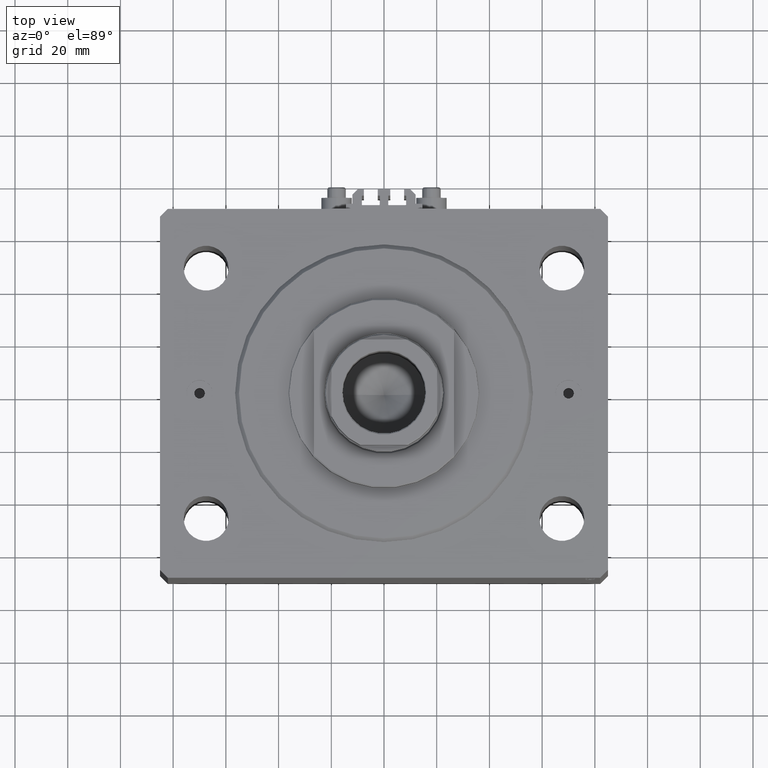
[diagram: clean part render]
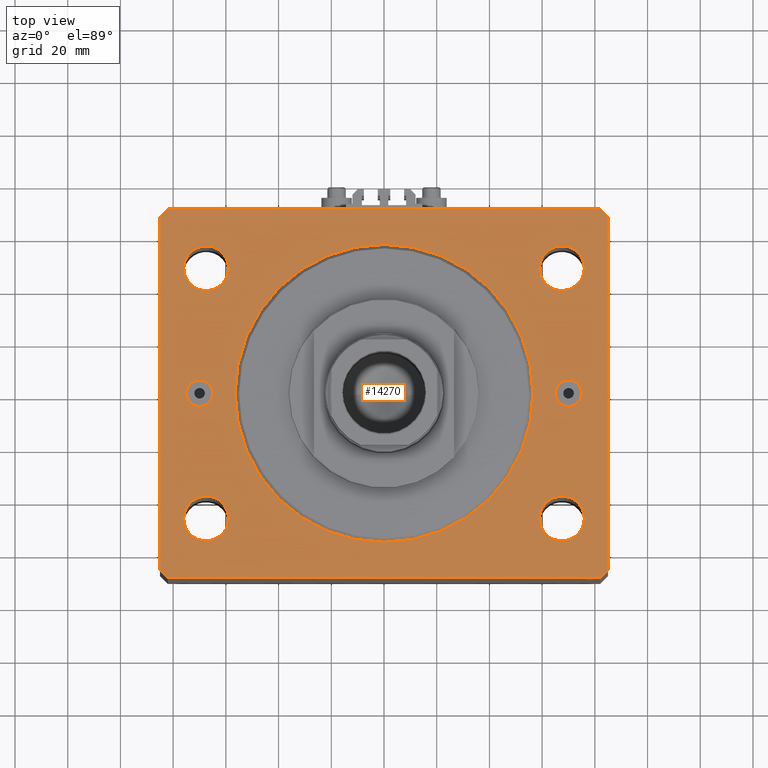
[diagram: same view with one face highlighted and labeled with its STEP entity id]
A machine part, top view. The second image highlights one B-rep face of the part: STEP entity #14270.
In plain terms, the highlighted planar face has unit normal (0, 0, 1).
Its self-contained STEP definition (entity closure, byte-faithful):
#52 = LINE ( 'NONE', #14856, #43388 ) ;
#108 = AXIS2_PLACEMENT_3D ( 'NONE', #15027, #25547, #40118 ) ;
#289 = CARTESIAN_POINT ( 'NONE',  ( 82.00000000000056843, 70.00000000000000000, 0.000000000000000000 ) ) ;
#474 = DIRECTION ( 'NONE',  ( 1.000000000000000000, 0.000000000000000000, 0.000000000000000000 ) ) ;
#652 = CARTESIAN_POINT ( 'NONE',  ( -76.00000000000000000, 47.50000000000000000, 0.000000000000000000 ) ) ;
#887 = CARTESIAN_POINT ( 'NONE',  ( 65.00000000000000000, 6.123233995736770227E-16, 0.000000000000000000 ) ) ;
#957 = DIRECTION ( 'NONE',  ( 1.000000000000000000, 0.000000000000000000, 0.000000000000000000 ) ) ;
#968 = EDGE_CURVE ( 'NONE', #1524, #42477, #32631, .T. ) ;
#1405 = DIRECTION ( 'NONE',  ( 0.000000000000000000, 0.000000000000000000, 1.000000000000000000 ) ) ;
#1524 = VERTEX_POINT ( 'NONE', #20827 ) ;
#1705 = CIRCLE ( 'NONE', #13165, 5.000000000000004441 ) ;
#1956 = CARTESIAN_POINT ( 'NONE',  ( -67.49999999999998579, -47.50000000000001421, 0.000000000000000000 ) ) ;
#2102 = ORIENTED_EDGE ( 'NONE', *, *, #40814, .T. ) ;
#2141 = ORIENTED_EDGE ( 'NONE', *, *, #24692, .T. ) ;
#2243 = VERTEX_POINT ( 'NONE', #289 ) ;
#2272 = VECTOR ( 'NONE', #24500, 1000.000000000000000 ) ;
#2326 = EDGE_CURVE ( 'NONE', #43741, #16659, #31159, .T. ) ;
#2604 = CARTESIAN_POINT ( 'NONE',  ( -85.00000000000001421, 67.00000000000001421, 0.000000000000000000 ) ) ;
#2660 = CARTESIAN_POINT ( 'NONE',  ( -59.00000000000001421, 47.50000000000000000, 0.000000000000000000 ) ) ;
#2767 = DIRECTION ( 'NONE',  ( 1.000000000000000000, 0.000000000000000000, 0.000000000000000000 ) ) ;
#3229 = ORIENTED_EDGE ( 'NONE', *, *, #16658, .F. ) ;
#3385 = VERTEX_POINT ( 'NONE', #15558 ) ;
#3391 = EDGE_CURVE ( 'NONE', #2243, #43118, #52, .T. ) ;
#3524 = CARTESIAN_POINT ( 'NONE',  ( 75.99999999999998579, -47.50000000000001421, 0.000000000000000000 ) ) ;
#3620 = EDGE_LOOP ( 'NONE', ( #29940, #2141, #8215, #15736, #19593, #2102, #12504, #19585 ) ) ;
#3699 = ORIENTED_EDGE ( 'NONE', *, *, #31629, .F. ) ;
#3866 = CARTESIAN_POINT ( 'NONE',  ( 85.00000000000052580, 66.99999999999995737, 0.000000000000000000 ) ) ;
#4001 = AXIS2_PLACEMENT_3D ( 'NONE', #19514, #19037, #26669 ) ;
#4335 = DIRECTION ( 'NONE',  ( 1.000000000000000000, 0.000000000000000000, 0.000000000000000000 ) ) ;
#4572 = CARTESIAN_POINT ( 'NONE',  ( 70.00000000000000000, 0.000000000000000000, 0.000000000000000000 ) ) ;
#4705 = EDGE_CURVE ( 'NONE', #35579, #15583, #30427, .T. ) ;
#4861 = DIRECTION ( 'NONE',  ( 0.000000000000000000, 0.000000000000000000, 1.000000000000000000 ) ) ;
#5519 = DIRECTION ( 'NONE',  ( 0.000000000000000000, -0.000000000000000000, -1.000000000000000000 ) ) ;
#5530 = CIRCLE ( 'NONE', #4001, 8.499999999999992895 ) ;
#5637 = VERTEX_POINT ( 'NONE', #37970 ) ;
#6010 = CIRCLE ( 'NONE', #24291, 8.499999999999992895 ) ;
#6042 = CIRCLE ( 'NONE', #31975, 8.500000000000007105 ) ;
#6076 = VECTOR ( 'NONE', #43825, 1000.000000000000114 ) ;
#6149 = VECTOR ( 'NONE', #35061, 1000.000000000000114 ) ;
#6207 = CARTESIAN_POINT ( 'NONE',  ( -82.00000000000000000, 70.00000000000000000, 0.000000000000000000 ) ) ;
#6305 = DIRECTION ( 'NONE',  ( 3.728360903591945148E-15, 1.000000000000000000, 0.000000000000000000 ) ) ;
#6600 = CARTESIAN_POINT ( 'NONE',  ( -70.00000000000000000, 0.000000000000000000, 0.000000000000000000 ) ) ;
#6945 = FACE_BOUND ( 'NONE', #37685, .T. ) ;
#7240 = LINE ( 'NONE', #32536, #37905 ) ;
#7487 = EDGE_CURVE ( 'NONE', #45016, #18530, #9091, .T. ) ;
#8215 = ORIENTED_EDGE ( 'NONE', *, *, #10422, .T. ) ;
#8246 = CARTESIAN_POINT ( 'NONE',  ( -65.00000000000000000, 0.000000000000000000, 0.000000000000000000 ) ) ;
#8278 = LINE ( 'NONE', #11632, #24062 ) ;
#8437 = CARTESIAN_POINT ( 'NONE',  ( -75.99999999999998579, -47.50000000000001421, 0.000000000000000000 ) ) ;
#9091 = CIRCLE ( 'NONE', #15197, 56.50000000000000711 ) ;
#9870 = DIRECTION ( 'NONE',  ( 0.000000000000000000, 0.000000000000000000, 1.000000000000000000 ) ) ;
#9987 = EDGE_CURVE ( 'NONE', #28322, #14012, #35062, .T. ) ;
#10422 = EDGE_CURVE ( 'NONE', #40585, #21958, #21148, .T. ) ;
#10494 = EDGE_LOOP ( 'NONE', ( #28122, #21555 ) ) ;
#10580 = ORIENTED_EDGE ( 'NONE', *, *, #27218, .F. ) ;
#10974 = EDGE_LOOP ( 'NONE', ( #13270, #38500 ) ) ;
#11632 = CARTESIAN_POINT ( 'NONE',  ( -82.00000000000000000, 70.00000000000000000, 0.000000000000000000 ) ) ;
#12023 = AXIS2_PLACEMENT_3D ( 'NONE', #33332, #36221, #15187 ) ;
#12501 = DIRECTION ( 'NONE',  ( 1.000000000000000000, 0.000000000000000000, 0.000000000000000000 ) ) ;
#12504 = ORIENTED_EDGE ( 'NONE', *, *, #46563, .T. ) ;
#12731 = DIRECTION ( 'NONE',  ( 1.000000000000000000, 0.000000000000000000, 0.000000000000000000 ) ) ;
#12854 = AXIS2_PLACEMENT_3D ( 'NONE', #6600, #21150, #2767 ) ;
#12995 = CARTESIAN_POINT ( 'NONE',  ( -70.00000000000000000, 0.000000000000000000, 0.000000000000000000 ) ) ;
#13038 = VERTEX_POINT ( 'NONE', #38020 ) ;
#13165 = AXIS2_PLACEMENT_3D ( 'NONE', #12995, #30419, #34006 ) ;
#13270 = ORIENTED_EDGE ( 'NONE', *, *, #32238, .F. ) ;
#14012 = VERTEX_POINT ( 'NONE', #652 ) ;
#14270 = ADVANCED_FACE ( 'NONE', ( #16970, #35345, #20546, #31534, #18625, #39888, #6945, #22439 ), #40346, .T. ) ;
#14358 = CIRCLE ( 'NONE', #12854, 5.000000000000004441 ) ;
#14856 = CARTESIAN_POINT ( 'NONE',  ( 82.00000000000056843, 70.00000000000000000, 0.000000000000000000 ) ) ;
#15027 = CARTESIAN_POINT ( 'NONE',  ( 0.000000000000000000, 0.000000000000000000, 0.000000000000000000 ) ) ;
#15187 = DIRECTION ( 'NONE',  ( 1.000000000000000000, 0.000000000000000000, 0.000000000000000000 ) ) ;
#15197 = AXIS2_PLACEMENT_3D ( 'NONE', #45204, #34691, #12501 ) ;
#15558 = CARTESIAN_POINT ( 'NONE',  ( 85.00000000000001421, -67.00000000000000000, 0.000000000000000000 ) ) ;
#15583 = VERTEX_POINT ( 'NONE', #3524 ) ;
#15736 = ORIENTED_EDGE ( 'NONE', *, *, #18282, .T. ) ;
#15980 = DIRECTION ( 'NONE',  ( 1.000000000000000000, 0.000000000000000000, 0.000000000000000000 ) ) ;
#16094 = CARTESIAN_POINT ( 'NONE',  ( 0.000000000000000000, 0.000000000000000000, 0.000000000000000000 ) ) ;
#16506 = AXIS2_PLACEMENT_3D ( 'NONE', #36001, #24992, #39573 ) ;
#16511 = DIRECTION ( 'NONE',  ( 1.000000000000000000, 0.000000000000000000, 0.000000000000000000 ) ) ;
#16658 = EDGE_CURVE ( 'NONE', #14012, #28322, #5530, .T. ) ;
#16659 = VERTEX_POINT ( 'NONE', #887 ) ;
#16970 = FACE_OUTER_BOUND ( 'NONE', #3620, .T. ) ;
#17880 = CARTESIAN_POINT ( 'NONE',  ( 75.00000000000001421, 0.000000000000000000, 0.000000000000000000 ) ) ;
#18282 = EDGE_CURVE ( 'NONE', #21958, #24950, #36134, .T. ) ;
#18290 = CARTESIAN_POINT ( 'NONE',  ( 85.00000000000052580, 66.99999999999995737, 0.000000000000000000 ) ) ;
#18497 = EDGE_CURVE ( 'NONE', #42477, #1524, #6042, .T. ) ;
#18530 = VERTEX_POINT ( 'NONE', #30839 ) ;
#18625 = FACE_BOUND ( 'NONE', #10974, .T. ) ;
#18826 = AXIS2_PLACEMENT_3D ( 'NONE', #16094, #4861, #12731 ) ;
#19037 = DIRECTION ( 'NONE',  ( 0.000000000000000000, 0.000000000000000000, 1.000000000000000000 ) ) ;
#19514 = CARTESIAN_POINT ( 'NONE',  ( -67.50000000000000000, 47.50000000000000000, 0.000000000000000000 ) ) ;
#19574 = CIRCLE ( 'NONE', #16506, 8.499999999999992895 ) ;
#19585 = ORIENTED_EDGE ( 'NONE', *, *, #38615, .T. ) ;
#19593 = ORIENTED_EDGE ( 'NONE', *, *, #27357, .T. ) ;
#19817 = AXIS2_PLACEMENT_3D ( 'NONE', #26500, #22240, #957 ) ;
#19917 = EDGE_CURVE ( 'NONE', #16659, #43741, #37324, .T. ) ;
#20497 = VERTEX_POINT ( 'NONE', #8246 ) ;
#20546 = FACE_BOUND ( 'NONE', #27692, .T. ) ;
#20827 = CARTESIAN_POINT ( 'NONE',  ( 59.00000000000000000, 47.49999999999999289, 0.000000000000000000 ) ) ;
#21148 = LINE ( 'NONE', #28069, #2272 ) ;
#21150 = DIRECTION ( 'NONE',  ( 0.000000000000000000, 0.000000000000000000, 1.000000000000000000 ) ) ;
#21368 = AXIS2_PLACEMENT_3D ( 'NONE', #25785, #40364, #474 ) ;
#21387 = CARTESIAN_POINT ( 'NONE',  ( -82.00000000000000000, -70.00000000000000000, 0.000000000000000000 ) ) ;
#21544 = ORIENTED_EDGE ( 'NONE', *, *, #46318, .F. ) ;
#21555 = ORIENTED_EDGE ( 'NONE', *, *, #19917, .T. ) ;
#21858 = LINE ( 'NONE', #18290, #6076 ) ;
#21958 = VERTEX_POINT ( 'NONE', #24869 ) ;
#22034 = VECTOR ( 'NONE', #36611, 1000.000000000000114 ) ;
#22240 = DIRECTION ( 'NONE',  ( 0.000000000000000000, -0.000000000000000000, -1.000000000000000000 ) ) ;
#22439 = FACE_BOUND ( 'NONE', #10494, .T. ) ;
#22479 = VERTEX_POINT ( 'NONE', #28455 ) ;
#22714 = DIRECTION ( 'NONE',  ( 1.000000000000000000, 0.000000000000000000, 0.000000000000000000 ) ) ;
#23292 = ORIENTED_EDGE ( 'NONE', *, *, #18497, .F. ) ;
#24062 = VECTOR ( 'NONE', #37647, 1000.000000000000114 ) ;
#24291 = AXIS2_PLACEMENT_3D ( 'NONE', #1956, #31966, #42066 ) ;
#24377 = DIRECTION ( 'NONE',  ( 0.000000000000000000, 0.000000000000000000, 1.000000000000000000 ) ) ;
#24500 = DIRECTION ( 'NONE',  ( 1.035655806553317576E-16, -1.000000000000000000, 0.000000000000000000 ) ) ;
#24692 = EDGE_CURVE ( 'NONE', #43118, #40585, #8278, .T. ) ;
#24713 = ORIENTED_EDGE ( 'NONE', *, *, #4705, .F. ) ;
#24869 = CARTESIAN_POINT ( 'NONE',  ( -85.00000000000000000, -67.00000000000000000, 0.000000000000000000 ) ) ;
#24950 = VERTEX_POINT ( 'NONE', #21387 ) ;
#24992 = DIRECTION ( 'NONE',  ( 0.000000000000000000, 0.000000000000000000, 1.000000000000000000 ) ) ;
#25063 = EDGE_LOOP ( 'NONE', ( #38686, #3229 ) ) ;
#25547 = DIRECTION ( 'NONE',  ( 0.000000000000000000, 0.000000000000000000, 1.000000000000000000 ) ) ;
#25612 = CARTESIAN_POINT ( 'NONE',  ( -85.00000000000000000, -67.00000000000000000, 0.000000000000000000 ) ) ;
#25785 = CARTESIAN_POINT ( 'NONE',  ( -67.50000000000000000, 47.50000000000000000, 0.000000000000000000 ) ) ;
#26500 = CARTESIAN_POINT ( 'NONE',  ( 70.00000000000000000, 0.000000000000000000, 0.000000000000000000 ) ) ;
#26647 = EDGE_CURVE ( 'NONE', #15583, #35579, #19574, .T. ) ;
#26669 = DIRECTION ( 'NONE',  ( 1.000000000000000000, 0.000000000000000000, 0.000000000000000000 ) ) ;
#27218 = EDGE_CURVE ( 'NONE', #18530, #45016, #29520, .T. ) ;
#27357 = EDGE_CURVE ( 'NONE', #24950, #22479, #7240, .T. ) ;
#27673 = CIRCLE ( 'NONE', #35275, 8.499999999999992895 ) ;
#27692 = EDGE_LOOP ( 'NONE', ( #23292, #38473 ) ) ;
#28069 = CARTESIAN_POINT ( 'NONE',  ( -85.00000000000001421, 67.00000000000001421, 0.000000000000000000 ) ) ;
#28122 = ORIENTED_EDGE ( 'NONE', *, *, #2326, .T. ) ;
#28322 = VERTEX_POINT ( 'NONE', #2660 ) ;
#28455 = CARTESIAN_POINT ( 'NONE',  ( 82.00000000000001421, -70.00000000000000000, 0.000000000000000000 ) ) ;
#29165 = VERTEX_POINT ( 'NONE', #3866 ) ;
#29520 = CIRCLE ( 'NONE', #18826, 56.50000000000000711 ) ;
#29940 = ORIENTED_EDGE ( 'NONE', *, *, #3391, .T. ) ;
#30108 = DIRECTION ( 'NONE',  ( -1.000000000000000000, 0.000000000000000000, 0.000000000000000000 ) ) ;
#30419 = DIRECTION ( 'NONE',  ( 0.000000000000000000, 0.000000000000000000, 1.000000000000000000 ) ) ;
#30427 = CIRCLE ( 'NONE', #38079, 8.499999999999992895 ) ;
#30839 = CARTESIAN_POINT ( 'NONE',  ( 56.50000000000000711, 0.000000000000000000, 0.000000000000000000 ) ) ;
#31159 = CIRCLE ( 'NONE', #44838, 5.000000000000004441 ) ;
#31421 = CARTESIAN_POINT ( 'NONE',  ( 59.00000000000000000, -47.50000000000001421, 0.000000000000000000 ) ) ;
#31534 = FACE_BOUND ( 'NONE', #32716, .T. ) ;
#31629 = EDGE_CURVE ( 'NONE', #5637, #20497, #14358, .T. ) ;
#31748 = EDGE_LOOP ( 'NONE', ( #10580, #35973 ) ) ;
#31966 = DIRECTION ( 'NONE',  ( 0.000000000000000000, 0.000000000000000000, 1.000000000000000000 ) ) ;
#31975 = AXIS2_PLACEMENT_3D ( 'NONE', #45169, #24377, #16511 ) ;
#32238 = EDGE_CURVE ( 'NONE', #13038, #46067, #6010, .T. ) ;
#32536 = CARTESIAN_POINT ( 'NONE',  ( -82.00000000000000000, -70.00000000000000000, 0.000000000000000000 ) ) ;
#32631 = CIRCLE ( 'NONE', #12023, 8.500000000000007105 ) ;
#32716 = EDGE_LOOP ( 'NONE', ( #36176, #24713 ) ) ;
#33332 = CARTESIAN_POINT ( 'NONE',  ( 67.50000000000000000, 47.49999999999999289, 0.000000000000000000 ) ) ;
#34006 = DIRECTION ( 'NONE',  ( 1.000000000000000000, 0.000000000000000000, 0.000000000000000000 ) ) ;
#34111 = CARTESIAN_POINT ( 'NONE',  ( 67.49999999999998579, -47.50000000000001421, 0.000000000000000000 ) ) ;
#34691 = DIRECTION ( 'NONE',  ( 0.000000000000000000, 0.000000000000000000, 1.000000000000000000 ) ) ;
#34939 = LINE ( 'NONE', #38772, #43675 ) ;
#35062 = CIRCLE ( 'NONE', #21368, 8.499999999999992895 ) ;
#35061 = DIRECTION ( 'NONE',  ( 0.7071067811865474617, 0.7071067811865474617, 0.000000000000000000 ) ) ;
#35275 = AXIS2_PLACEMENT_3D ( 'NONE', #39016, #9870, #38534 ) ;
#35345 = FACE_BOUND ( 'NONE', #25063, .T. ) ;
#35579 = VERTEX_POINT ( 'NONE', #31421 ) ;
#35973 = ORIENTED_EDGE ( 'NONE', *, *, #7487, .F. ) ;
#36001 = CARTESIAN_POINT ( 'NONE',  ( 67.49999999999998579, -47.50000000000001421, 0.000000000000000000 ) ) ;
#36134 = LINE ( 'NONE', #25612, #22034 ) ;
#36176 = ORIENTED_EDGE ( 'NONE', *, *, #26647, .F. ) ;
#36221 = DIRECTION ( 'NONE',  ( 0.000000000000000000, 0.000000000000000000, 1.000000000000000000 ) ) ;
#36611 = DIRECTION ( 'NONE',  ( 0.7071067811865474617, -0.7071067811865474617, 0.000000000000000000 ) ) ;
#37324 = CIRCLE ( 'NONE', #19817, 5.000000000000004441 ) ;
#37647 = DIRECTION ( 'NONE',  ( -0.7071067811865507924, -0.7071067811865441310, 0.000000000000000000 ) ) ;
#37685 = EDGE_LOOP ( 'NONE', ( #21544, #3699 ) ) ;
#37905 = VECTOR ( 'NONE', #4335, 1000.000000000000000 ) ;
#37970 = CARTESIAN_POINT ( 'NONE',  ( -75.00000000000001421, 6.123233995736770227E-16, 0.000000000000000000 ) ) ;
#38020 = CARTESIAN_POINT ( 'NONE',  ( -59.00000000000000000, -47.50000000000001421, 0.000000000000000000 ) ) ;
#38079 = AXIS2_PLACEMENT_3D ( 'NONE', #34111, #1405, #15980 ) ;
#38087 = CARTESIAN_POINT ( 'NONE',  ( -56.50000000000000711, 6.919254415182546126E-15, 0.000000000000000000 ) ) ;
#38198 = LINE ( 'NONE', #45563, #6149 ) ;
#38473 = ORIENTED_EDGE ( 'NONE', *, *, #968, .F. ) ;
#38500 = ORIENTED_EDGE ( 'NONE', *, *, #46520, .F. ) ;
#38534 = DIRECTION ( 'NONE',  ( 1.000000000000000000, 0.000000000000000000, 0.000000000000000000 ) ) ;
#38615 = EDGE_CURVE ( 'NONE', #29165, #2243, #21858, .T. ) ;
#38686 = ORIENTED_EDGE ( 'NONE', *, *, #9987, .F. ) ;
#38772 = CARTESIAN_POINT ( 'NONE',  ( 85.00000000000001421, -67.00000000000000000, 0.000000000000000000 ) ) ;
#39016 = CARTESIAN_POINT ( 'NONE',  ( -67.49999999999998579, -47.50000000000001421, 0.000000000000000000 ) ) ;
#39573 = DIRECTION ( 'NONE',  ( 1.000000000000000000, 0.000000000000000000, 0.000000000000000000 ) ) ;
#39888 = FACE_BOUND ( 'NONE', #31748, .T. ) ;
#40118 = DIRECTION ( 'NONE',  ( 1.000000000000000000, 0.000000000000000000, -0.000000000000000000 ) ) ;
#40346 = PLANE ( 'NONE',  #108 ) ;
#40364 = DIRECTION ( 'NONE',  ( 0.000000000000000000, 0.000000000000000000, 1.000000000000000000 ) ) ;
#40585 = VERTEX_POINT ( 'NONE', #2604 ) ;
#40814 = EDGE_CURVE ( 'NONE', #22479, #3385, #38198, .T. ) ;
#42066 = DIRECTION ( 'NONE',  ( 1.000000000000000000, 0.000000000000000000, 0.000000000000000000 ) ) ;
#42477 = VERTEX_POINT ( 'NONE', #46161 ) ;
#43118 = VERTEX_POINT ( 'NONE', #6207 ) ;
#43388 = VECTOR ( 'NONE', #30108, 1000.000000000000000 ) ;
#43675 = VECTOR ( 'NONE', #6305, 1000.000000000000000 ) ;
#43741 = VERTEX_POINT ( 'NONE', #17880 ) ;
#43825 = DIRECTION ( 'NONE',  ( -0.7071067811865361374, 0.7071067811865588970, 0.000000000000000000 ) ) ;
#44838 = AXIS2_PLACEMENT_3D ( 'NONE', #4572, #5519, #22714 ) ;
#45016 = VERTEX_POINT ( 'NONE', #38087 ) ;
#45169 = CARTESIAN_POINT ( 'NONE',  ( 67.50000000000000000, 47.49999999999999289, 0.000000000000000000 ) ) ;
#45204 = CARTESIAN_POINT ( 'NONE',  ( 0.000000000000000000, 0.000000000000000000, 0.000000000000000000 ) ) ;
#45563 = CARTESIAN_POINT ( 'NONE',  ( 82.00000000000001421, -70.00000000000000000, 0.000000000000000000 ) ) ;
#46067 = VERTEX_POINT ( 'NONE', #8437 ) ;
#46161 = CARTESIAN_POINT ( 'NONE',  ( 76.00000000000001421, 47.49999999999999289, 0.000000000000000000 ) ) ;
#46318 = EDGE_CURVE ( 'NONE', #20497, #5637, #1705, .T. ) ;
#46520 = EDGE_CURVE ( 'NONE', #46067, #13038, #27673, .T. ) ;
#46563 = EDGE_CURVE ( 'NONE', #3385, #29165, #34939, .T. ) ;